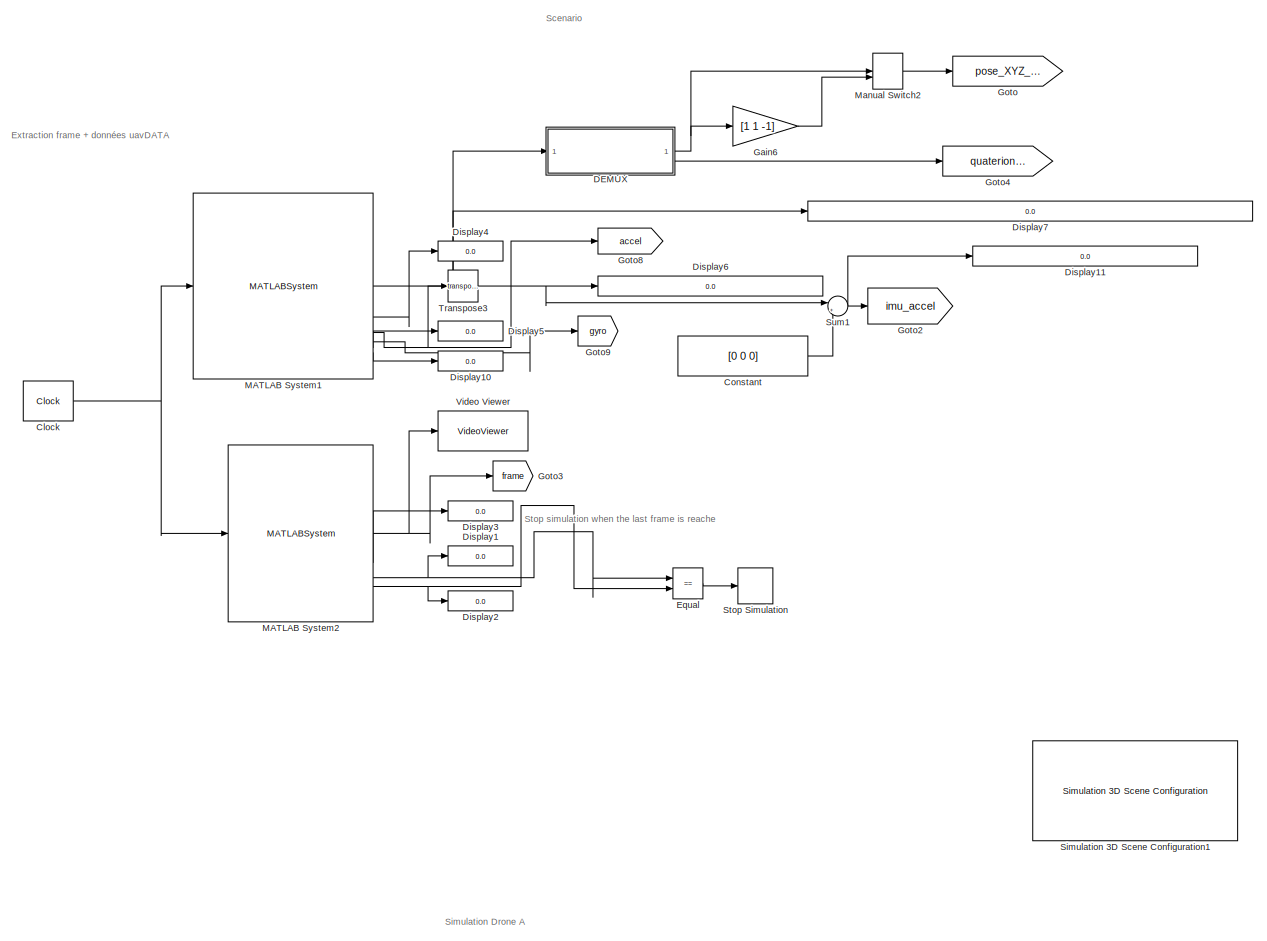
[diagram: root canvas - part 1/8, top center region]
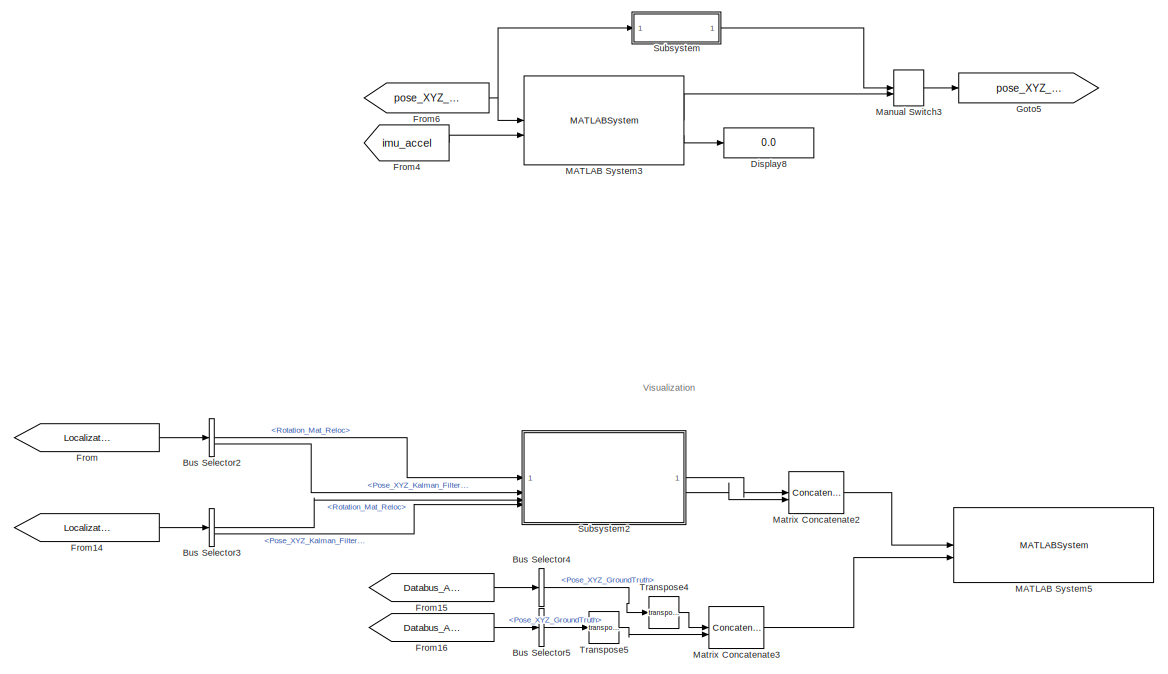
[diagram: root canvas - part 2/8, top right region]
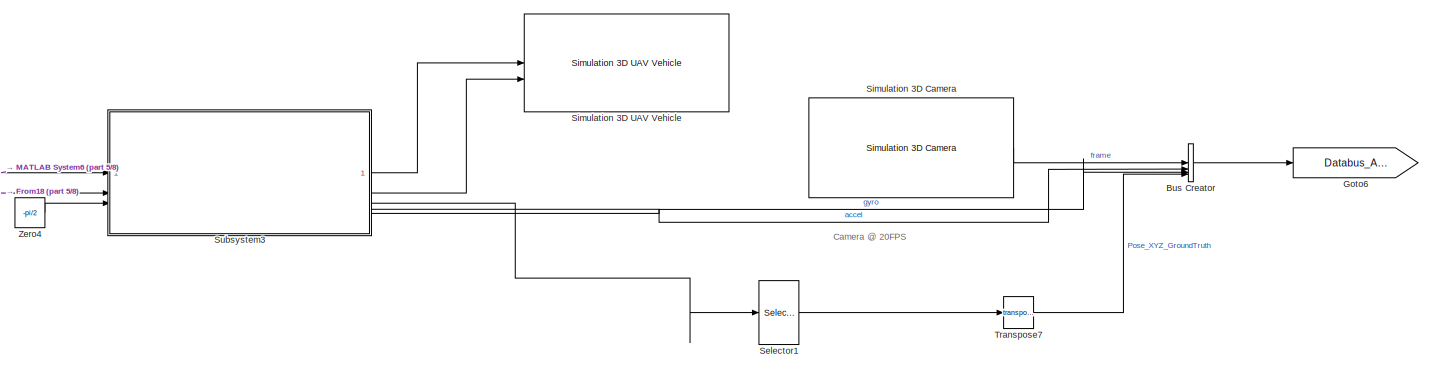
[diagram: root canvas - part 3/8, central region]
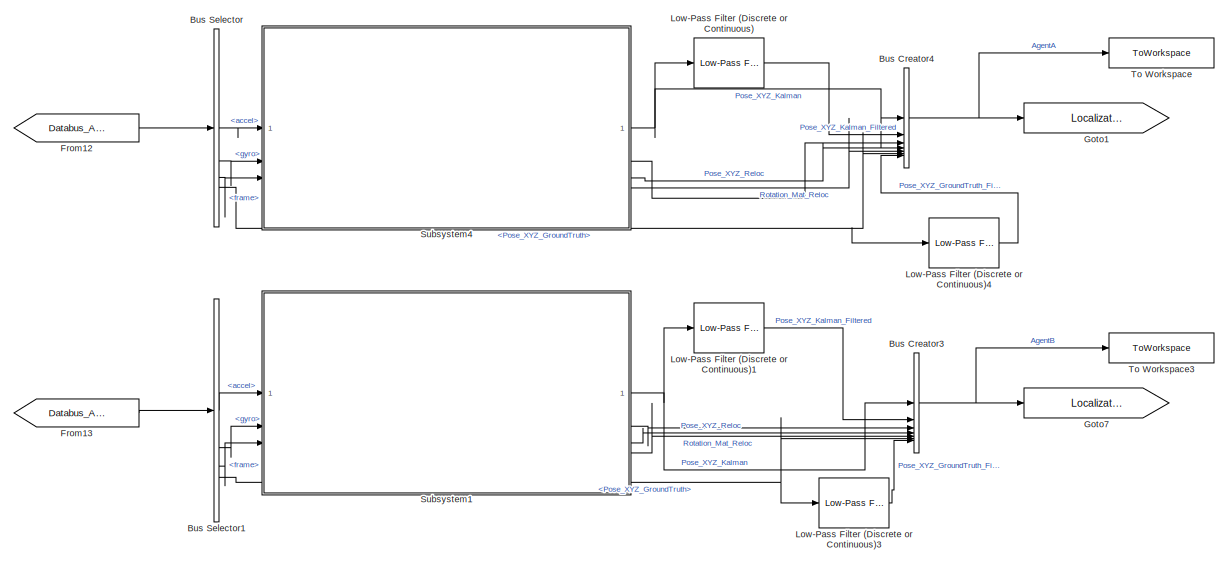
[diagram: root canvas - part 4/8, middle right region]
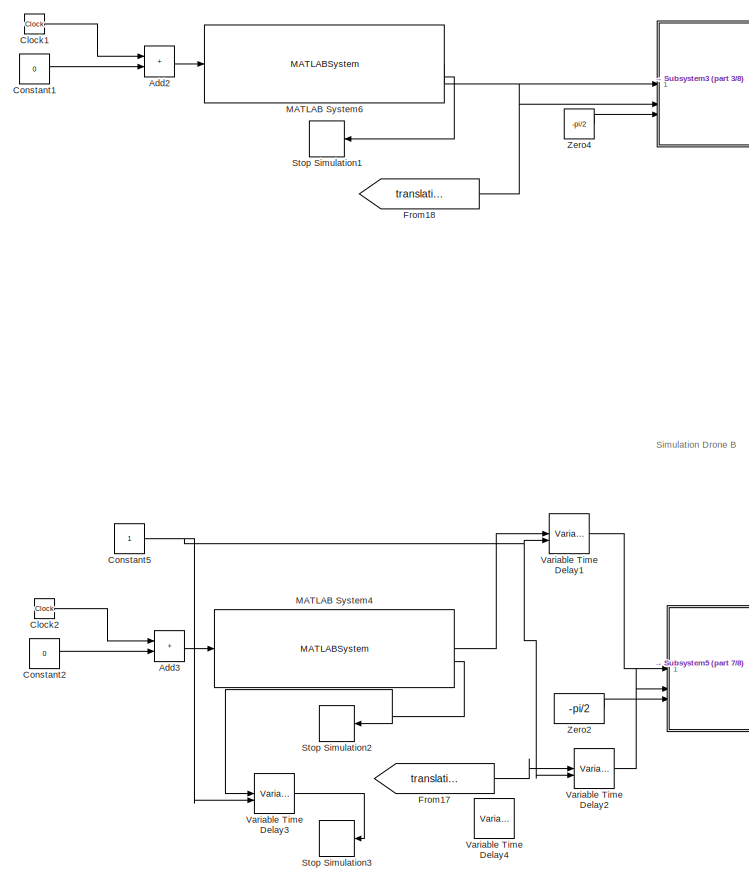
[diagram: root canvas - part 5/8, central region]
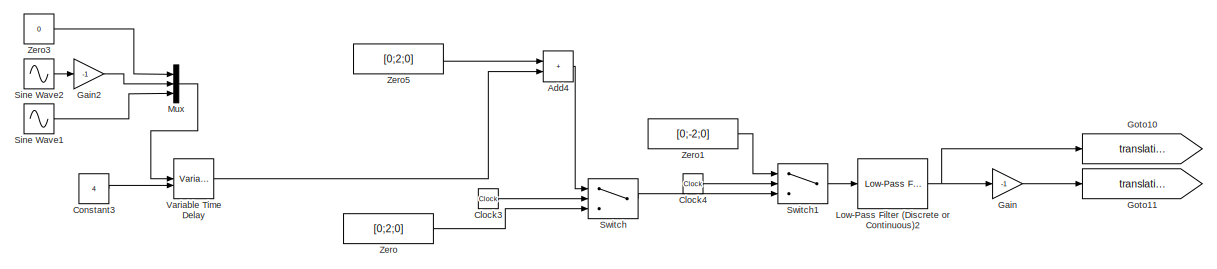
[diagram: root canvas - part 6/8, middle left region]
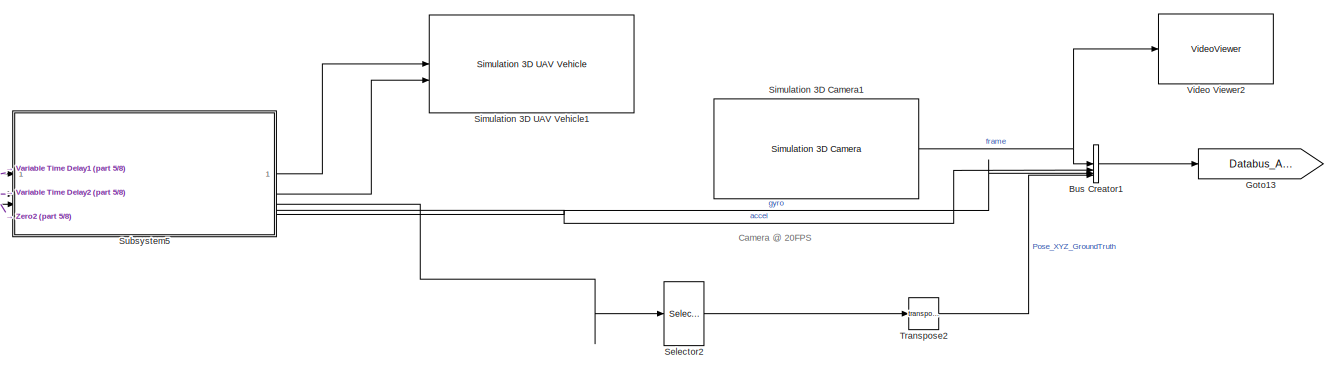
[diagram: root canvas - part 7/8, bottom center region]
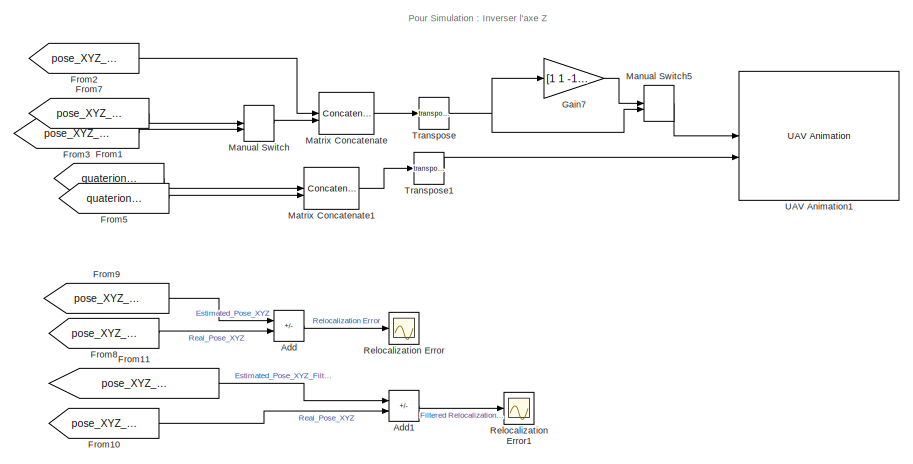
[diagram: root canvas - part 8/8, bottom right region]
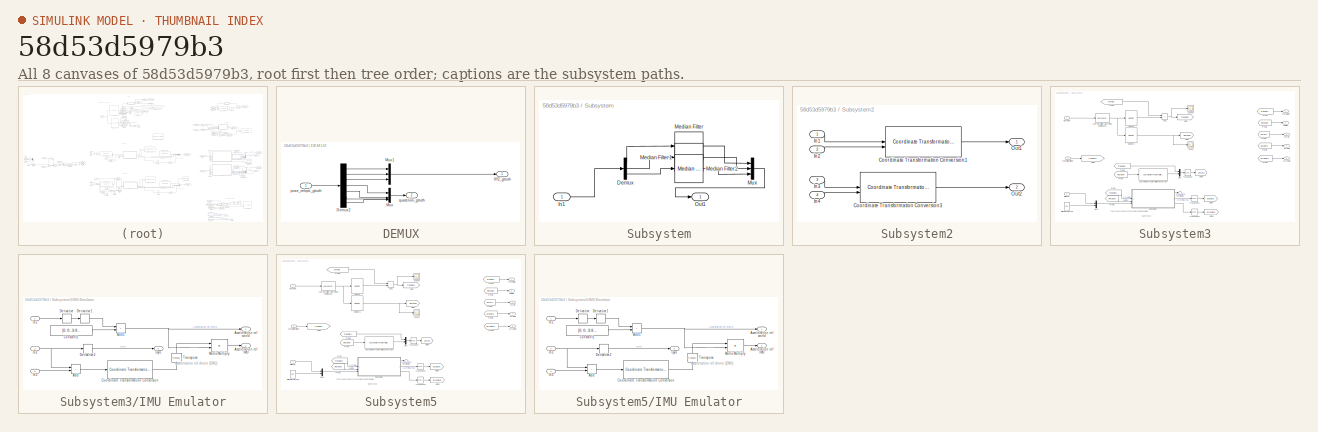
[diagram: thumbnail index - all 8 canvases of the model, root first then tree order]
MODEL slx_58d53d5979b3
KIND model
CONFIG AbsTol = auto
CONFIG EnableMultiTasking = on
CONFIG FixedStep = 0.005
CONFIG MaxStep = auto
CONFIG MinStep = auto
CONFIG RelTol = 1e-3
CONFIG SampleTimeConstraint = Unconstrained
CONFIG SolverName = FixedStepAuto
CONFIG StartTime = 0.0
CONFIG StopTime = inf
BLOCK [Sum] Add
  Commented = on
  IconShape = rectangular
  Inputs = +-
BLOCK [Sum] Add1
  Commented = on
  IconShape = rectangular
  Inputs = +-
BLOCK [Sum] Add2
  IconShape = rectangular
BLOCK [Sum] Add3
  IconShape = rectangular
BLOCK [Sum] Add4
  IconShape = rectangular
BLOCK [BusCreator] Bus Creator
  DisplayOption = bar
  InheritFromInputs = on
  Inputs = 4
BLOCK [BusCreator] Bus Creator1
  DisplayOption = bar
  InheritFromInputs = on
  Inputs = 4
BLOCK [BusCreator] Bus Creator3
  DisplayOption = bar
  InheritFromInputs = on
  Inputs = 7
BLOCK [BusCreator] Bus Creator4
  DisplayOption = bar
  InheritFromInputs = on
  Inputs = 7
BLOCK [BusSelector] Bus Selector
  OutputSignals = accel,gyro,frame,Pose_XYZ_GroundTruth
BLOCK [BusSelector] Bus Selector1
  OutputSignals = accel,gyro,frame,Pose_XYZ_GroundTruth
BLOCK [BusSelector] Bus Selector2
  OutputSignals = Rotation_Mat_Reloc,Pose_XYZ_Kalman_Filtered
BLOCK [BusSelector] Bus Selector3
  OutputSignals = Rotation_Mat_Reloc,Pose_XYZ_Kalman_Filtered
BLOCK [BusSelector] Bus Selector4
  OutputSignals = Pose_XYZ_GroundTruth
BLOCK [BusSelector] Bus Selector5
  OutputSignals = Pose_XYZ_GroundTruth
BLOCK [Clock] Clock
  Commented = on
  DisplayTime = on
BLOCK [Clock] Clock1
BLOCK [Clock] Clock2
BLOCK [Clock] Clock3
BLOCK [Clock] Clock4
BLOCK [Constant] Constant
  Commented = on
  Value = [0 0 0]
BLOCK [Constant] Constant1
  Value = 0
BLOCK [Constant] Constant2
  Value = 0
BLOCK [Constant] Constant3
  Value = 4
BLOCK [Constant] Constant5
BLOCK [SubSystem] DEMUX
  Commented = on
BLOCK [Demux] DEMUX/Demux2
  Outputs = 7
BLOCK [Mux] DEMUX/Mux
  DisplayOption = bar
BLOCK [Mux] DEMUX/Mux1
  DisplayOption = bar
  Inputs = 3
BLOCK [Outport] DEMUX/XYZ_gtruth
BLOCK [Inport] DEMUX/pose_refopti_gtruth
BLOCK [Outport] DEMUX/quaterion_gtruth
  Port = 2
BLOCK [Display] Display1
  Commented = on
  Decimation = 1
BLOCK [Display] Display10
  Commented = on
  Decimation = 1
BLOCK [Display] Display11
  Commented = on
  Decimation = 1
BLOCK [Display] Display2
  Commented = on
  Decimation = 1
BLOCK [Display] Display3
  Commented = on
  Decimation = 1
BLOCK [Display] Display4
  Commented = on
  Decimation = 1
BLOCK [Display] Display5
  Commented = on
  Decimation = 1
BLOCK [Display] Display6
  Commented = on
  Decimation = 1
BLOCK [Display] Display7
  Commented = on
  Decimation = 1
BLOCK [Display] Display8
  Commented = on
  Decimation = 1
BLOCK [RelationalOperator] Equal
  Commented = on
  InputSameDT = off
  Operator = ==
  OutDataTypeStr = boolean
  RndMeth = Simplest
BLOCK [From] From
  GotoTag = Localization_AgentA
BLOCK [From] From1
  Commented = on
  GotoTag = quaterion_opti
BLOCK [From] From10
  Commented = on
  GotoTag = pose_XYZ_opti
BLOCK [From] From11
  Commented = on
  GotoTag = pose_XYZ_reloc_filtered
BLOCK [From] From12
  GotoTag = Databus_AgentA
BLOCK [From] From13
  GotoTag = Databus_AgentB
BLOCK [From] From14
  GotoTag = Localization_AgentB
BLOCK [From] From15
  GotoTag = Databus_AgentA
BLOCK [From] From16
  GotoTag = Databus_AgentB
BLOCK [From] From17
  GotoTag = translationOffsetB
BLOCK [From] From18
  GotoTag = translationOffsetA
BLOCK [From] From2
  Commented = on
  GotoTag = pose_XYZ_opti
BLOCK [From] From3
  Commented = on
  GotoTag = pose_XYZ_reloc_agent1
BLOCK [From] From4
  Commented = on
  GotoTag = imu_accel
BLOCK [From] From5
  Commented = on
  GotoTag = quaterion_opti
BLOCK [From] From6
  Commented = on
  GotoTag = pose_XYZ_reloc_agent1
BLOCK [From] From7
  Commented = on
  GotoTag = pose_XYZ_reloc_filtered
BLOCK [From] From8
  Commented = on
  GotoTag = pose_XYZ_opti
BLOCK [From] From9
  Commented = on
  GotoTag = pose_XYZ_reloc_agent1
BLOCK [Gain] Gain
  Gain = -1
BLOCK [Gain] Gain2
  Gain = -1
BLOCK [Gain] Gain6
  Commented = on
  Gain = [1 1 -1]
BLOCK [Gain] Gain7
  Commented = on
  Gain = [1 1 -1; 1 1 -1]
BLOCK [Goto] Goto
  Commented = on
  GotoTag = pose_XYZ_opti
BLOCK [Goto] Goto1
  GotoTag = Localization_AgentA
BLOCK [Goto] Goto10
  GotoTag = translationOffsetA
BLOCK [Goto] Goto11
  GotoTag = translationOffsetB
BLOCK [Goto] Goto13
  GotoTag = Databus_AgentB
BLOCK [Goto] Goto2
  Commented = on
  GotoTag = imu_accel
BLOCK [Goto] Goto3
  Commented = on
  GotoTag = frame
BLOCK [Goto] Goto4
  Commented = on
  GotoTag = quaterion_opti
BLOCK [Goto] Goto5
  Commented = on
  GotoTag = pose_XYZ_reloc_filtered
BLOCK [Goto] Goto6
  GotoTag = Databus_AgentA
BLOCK [Goto] Goto7
  GotoTag = Localization_AgentB
BLOCK [Goto] Goto8
  Commented = on
  GotoTag = accel
BLOCK [Goto] Goto9
  Commented = on
  GotoTag = gyro
BLOCK [Reference] Low-Pass Filter (Discrete or Continuous)  REF=eeGeneralControl/Low-Pass Filter
(Discrete or Continuous)
  LibrarySourceBlock = ee_sl_lib/General Control/Low-Pass Filter\n(Discrete or Continuous)
  SourceBlock = eeGeneralControl/Low-Pass Filter\n(Discrete or Continuous)
  SourceType = Low-Pass Filter (Discrete or Continuous)
BLOCK [Reference] Low-Pass Filter (Discrete or Continuous)1  REF=eeGeneralControl/Low-Pass Filter
(Discrete or Continuous)
  LibrarySourceBlock = ee_sl_lib/General Control/Low-Pass Filter\n(Discrete or Continuous)
  SourceBlock = eeGeneralControl/Low-Pass Filter\n(Discrete or Continuous)
  SourceType = Low-Pass Filter (Discrete or Continuous)
BLOCK [Reference] Low-Pass Filter (Discrete or Continuous)2  REF=eeGeneralControl/Low-Pass Filter
(Discrete or Continuous)
  LibrarySourceBlock = ee_sl_lib/General Control/Low-Pass Filter\n(Discrete or Continuous)
  SourceBlock = eeGeneralControl/Low-Pass Filter\n(Discrete or Continuous)
  SourceType = Low-Pass Filter (Discrete or Continuous)
BLOCK [Reference] Low-Pass Filter (Discrete or Continuous)3  REF=eeGeneralControl/Low-Pass Filter
(Discrete or Continuous)
  LibrarySourceBlock = ee_sl_lib/General Control/Low-Pass Filter\n(Discrete or Continuous)
  SourceBlock = eeGeneralControl/Low-Pass Filter\n(Discrete or Continuous)
  SourceType = Low-Pass Filter (Discrete or Continuous)
BLOCK [Reference] Low-Pass Filter (Discrete or Continuous)4  REF=eeGeneralControl/Low-Pass Filter
(Discrete or Continuous)
  LibrarySourceBlock = ee_sl_lib/General Control/Low-Pass Filter\n(Discrete or Continuous)
  SourceBlock = eeGeneralControl/Low-Pass Filter\n(Discrete or Continuous)
  SourceType = Low-Pass Filter (Discrete or Continuous)
BLOCK [MATLABSystem] MATLAB System1
  Commented = on
  MaskDisplay = disp('GTruthPlayerSystem');
  MaskType = GTruthPlayerSystem
  SimulateUsing = Interpreted execution
  System = GTruthPlayerSystem
  groundTruthFile = <userpath>\Documents\SEN5\CollaborativeSLAM\Scenarios\7\uavData.mat
BLOCK [MATLABSystem] MATLAB System2
  Commented = on
  MaskDisplay = disp('ImagePlayerSystem');
  MaskType = ImagePlayerSystem
  SimulateUsing = Interpreted execution
  System = ImagePlayerSystem
  cameraSize = [720,1280, 1]
  groundTruthFile = <userpath>\Documents\SEN5\CollaborativeSLAM\Scenarios\7\uavData.mat
  imageFolder = <userpath>\Documents\SEN5\CollaborativeSLAM\Scenarios\7\images
BLOCK [MATLABSystem] MATLAB System3
  Commented = on
  MaskDisplay = disp('PositionAccelFilter');\nport_label('input',1,'position');\nport_label('input',2,'acceleration');\nport_label('output',1,'filteredPosition');\nport_label('output',2,'isJump');
  MaskType = PositionAccelFilter
  SimulateUsing = Code generation
  System = PositionAccelFilter
  alpha = 0.1
  maxAcceleration = 10.0
  maxPositionJump = 0.2
  windowSize = 5
BLOCK [MATLABSystem] MATLAB System4
  MaskDisplay = disp('SmoothBasicWaypointManager');\nport_label('input',1,'time');\nport_label('output',1,'waypoint');\nport_label('output',2,'finished');
  MaskType = SmoothBasicWaypointManager
  ScenarioName = 6
  ScenariosDirectory = <userpath>\Documents\SEN5\CollaborativeSLAM\Scenarios
  SimulateUsing = Interpreted execution
  StepTime = 0.01
  System = SmoothBasicWaypointManager
BLOCK [MATLABSystem] MATLAB System5
  MaskDisplay = disp('HelperVisualizationSystem');\nport_label('input',1,'TformID');\nport_label('input',2,'Gtruth');
  MaskType = HelperVisualizationSystem
  NumberOfPoses = 2
  SampleTime = -1
  ScenarioName = 8
  ScenariosDirectory = <userpath>\Documents\SEN5\CollaborativeSLAM\Scenarios
  SimulateUsing = Interpreted execution
  System = HelperVisualizationSystem
  XLim = [-10 60]
  YLim = [-10 10]
  ZLim = [-10 10]
BLOCK [MATLABSystem] MATLAB System6
  MaskDisplay = disp('SmoothBasicWaypointManager');\nport_label('input',1,'time');\nport_label('output',1,'waypoint');\nport_label('output',2,'finished');
  MaskType = SmoothBasicWaypointManager
  ScenarioName = 6
  ScenariosDirectory = <userpath>\Documents\SEN5\CollaborativeSLAM\Scenarios
  SimulateUsing = Interpreted execution
  StepTime = 0.01
  System = SmoothBasicWaypointManager
BLOCK [ManualSwitch] Manual Switch
  Commented = on
  CurrentSetting = 0
BLOCK [ManualSwitch] Manual Switch2
  Commented = on
BLOCK [ManualSwitch] Manual Switch3
  Commented = on
  CurrentSetting = 0
BLOCK [ManualSwitch] Manual Switch5
  Commented = on
BLOCK [Concatenate] Matrix Concatenate
  Commented = on
  ConcatenateDimension = 2
  Mode = Multidimensional array
BLOCK [Concatenate] Matrix Concatenate1
  Commented = on
  ConcatenateDimension = 2
  Mode = Multidimensional array
BLOCK [Concatenate] Matrix Concatenate2
  ConcatenateDimension = 2
  Mode = Multidimensional array
  NumInputs = 3
BLOCK [Concatenate] Matrix Concatenate3
  ConcatenateDimension = 2
  Mode = Multidimensional array
BLOCK [Mux] Mux
  DisplayOption = bar
  Inputs = 3
BLOCK [Scope] Relocalization Error
  Commented = on
  Floating = off
  NumInputPorts = 1
  ScopeSpecificationString = Simulink.scopes.TimeScopeBlockCfg('CurrentConfiguration', extmgr.ConfigurationSet(extmgr.Configuration('Core','General UI',true),extmgr.Configuration('Core','Source UI',true),extmgr.Configuration('Sources','WiredSimulink',true,'DataLoggingVariableName','ScopeData1'),extmgr.Configuration('Visuals','Time Domain',true),extmgr.Configuration('Tools','Plot Navigation',true),extmgr.Configuration('Tools',...<+40ch>
BLOCK [Scope] Relocalization Error1
  Commented = on
  Floating = off
  NumInputPorts = 1
  ScopeSpecificationString = Simulink.scopes.TimeScopeBlockCfg('CurrentConfiguration', extmgr.ConfigurationSet(extmgr.Configuration('Core','General UI',true),extmgr.Configuration('Core','Source UI',true),extmgr.Configuration('Sources','WiredSimulink',true,'DataLoggingVariableName','ScopeData2'),extmgr.Configuration('Visuals','Time Domain',true),extmgr.Configuration('Tools','Plot Navigation',true),extmgr.Configuration('Tools',...<+40ch>
BLOCK [Selector] Selector1
  IndexOptions = Index vector (dialog)
  Indices = [1 2 3]
  InputPortWidth = 7
  OutputSizes = 1
BLOCK [Selector] Selector2
  IndexOptions = Index vector (dialog)
  Indices = [1 2 3]
  InputPortWidth = 7
  OutputSizes = 1
BLOCK [Reference] Simulation 3D Camera  REF=sim3dcameralib/Simulation 3D Camera
  LibrarySourceBlock = drivingsim3d/Simulation 3D Camera
  Priority = 1
  SourceBlock = sim3dcameralib/Simulation 3D Camera
  SourceType = Simulation 3D Camera
BLOCK [Reference] Simulation 3D Camera1  REF=sim3dcameralib/Simulation 3D Camera
  LibrarySourceBlock = drivingsim3d/Simulation 3D Camera
  Priority = 1
  SourceBlock = sim3dcameralib/Simulation 3D Camera
  SourceType = Simulation 3D Camera
BLOCK [Reference] Simulation 3D Scene Configuration1  REF=sim3dlib/Simulation 3D Scene Configuration
  LibrarySourceBlock = uavsim3dlib/Simulation 3D Scene Configuration
  Priority = 0
  SourceBlock = sim3dlib/Simulation 3D Scene Configuration
  SourceType = Simulation 3D Scene Configuration
BLOCK [Reference] Simulation 3D UAV Vehicle  REF=uavsim3dlib/Simulation 3D UAV Vehicle
  Priority = -1
  SourceBlock = uavsim3dlib/Simulation 3D UAV Vehicle
  SourceType = Simulation 3D UAV Vehicle
BLOCK [Reference] Simulation 3D UAV Vehicle1  REF=uavsim3dlib/Simulation 3D UAV Vehicle
  Priority = -1
  SourceBlock = uavsim3dlib/Simulation 3D UAV Vehicle
  SourceType = Simulation 3D UAV Vehicle
BLOCK [Sin] Sine Wave1
  Frequency = 2*pi/20
  SampleTime = 0
BLOCK [Sin] Sine Wave2
  Amplitude = 4
  Frequency = 2*pi/40
  SampleTime = 0
BLOCK [Stop] Stop Simulation
  Commented = on
BLOCK [Stop] Stop Simulation1
  Commented = on
  NameLocation = top
BLOCK [Stop] Stop Simulation2
  Commented = on
  NameLocation = top
BLOCK [Stop] Stop Simulation3
  NameLocation = top
BLOCK [SubSystem] Subsystem
  Commented = on
BLOCK [Demux] Subsystem/Demux
  Outputs = 3
BLOCK [Inport] Subsystem/In1
BLOCK [Reference] Subsystem/Median Filter  REF=dspstat3/Median
Filter
  SourceBlock = dspstat3/Median\nFilter
  SourceType = dsp.simulink.MedianFilter
BLOCK [Reference] Subsystem/Median Filter1  REF=dspstat3/Median
Filter
  SourceBlock = dspstat3/Median\nFilter
  SourceType = dsp.simulink.MedianFilter
BLOCK [Reference] Subsystem/Median Filter2  REF=dspstat3/Median
Filter
  SourceBlock = dspstat3/Median\nFilter
  SourceType = dsp.simulink.MedianFilter
BLOCK [Mux] Subsystem/Mux
  DisplayOption = bar
  Inputs = 3
BLOCK [Outport] Subsystem/Out1
  PortDimensions = [3 1]
BLOCK [SubSystem] Subsystem1
  ReferencedSubsystem = LocalizationSystem
BLOCK [SubSystem] Subsystem2
BLOCK [Reference] Subsystem2/Coordinate Transformation Conversion1  REF=robotcorelib/Coordinate Transformation Conversion
  LibrarySourceBlock = navlib/Utilities/Coordinate Transformation Conversion
  SourceBlock = robotcorelib/Coordinate Transformation Conversion
  SourceType = robotics.slcore.internal.block.CoordinateTransformationConversion
BLOCK [Reference] Subsystem2/Coordinate Transformation Conversion3  REF=robotcorelib/Coordinate Transformation Conversion
  LibrarySourceBlock = navlib/Utilities/Coordinate Transformation Conversion
  SourceBlock = robotcorelib/Coordinate Transformation Conversion
  SourceType = robotics.slcore.internal.block.CoordinateTransformationConversion
BLOCK [Inport] Subsystem2/In1
BLOCK [Inport] Subsystem2/In2
  Port = 2
BLOCK [Inport] Subsystem2/In3
  Port = 3
BLOCK [Inport] Subsystem2/In4
  Port = 4
BLOCK [Outport] Subsystem2/Out1
BLOCK [Outport] Subsystem2/Out2
  Port = 2
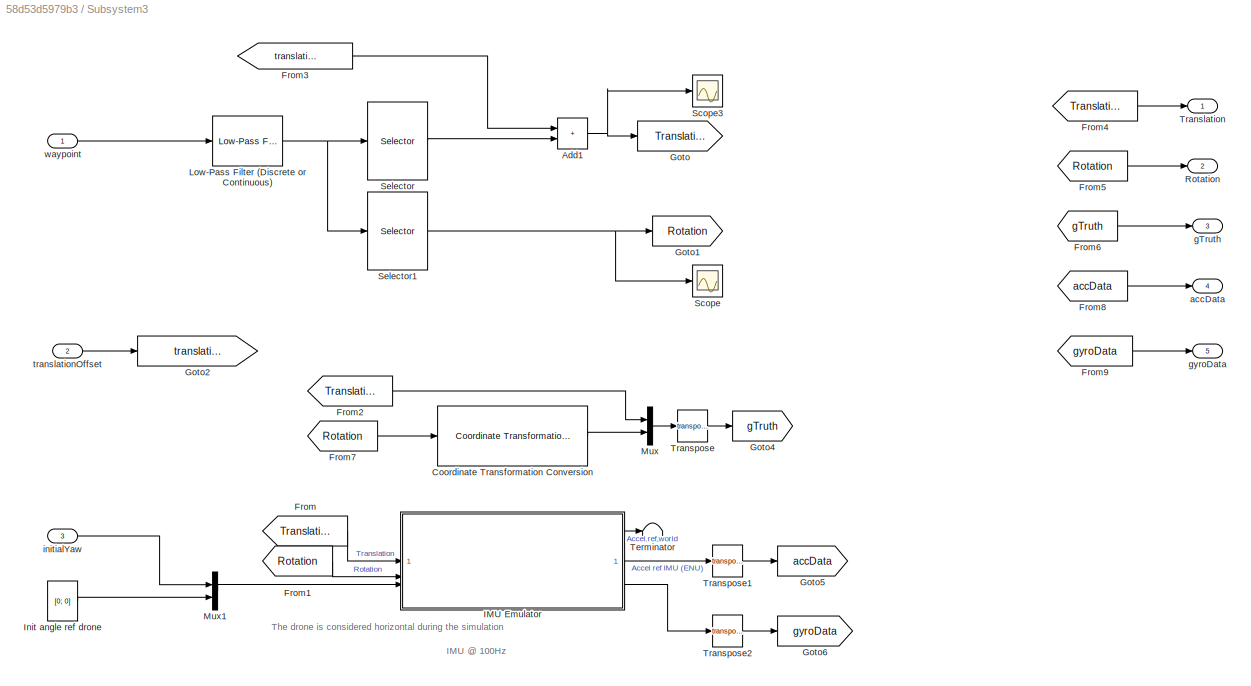
BLOCK [SubSystem] Subsystem3
BLOCK [Sum] Subsystem3/Add1
  IconShape = rectangular
BLOCK [Reference] Subsystem3/Coordinate Transformation Conversion  REF=robotcorelib/Coordinate Transformation Conversion
  SourceBlock = robotcorelib/Coordinate Transformation Conversion
  SourceType = robotics.slcore.internal.block.CoordinateTransformationConversion
BLOCK [From] Subsystem3/From
  GotoTag = Translation
BLOCK [From] Subsystem3/From1
  GotoTag = Rotation
BLOCK [From] Subsystem3/From2
  GotoTag = Translation
BLOCK [From] Subsystem3/From3
  GotoTag = translationOffset
BLOCK [From] Subsystem3/From4
  GotoTag = Translation
BLOCK [From] Subsystem3/From5
  GotoTag = Rotation
BLOCK [From] Subsystem3/From6
  GotoTag = gTruth
BLOCK [From] Subsystem3/From7
  GotoTag = Rotation
BLOCK [From] Subsystem3/From8
  GotoTag = accData
BLOCK [From] Subsystem3/From9
  GotoTag = gyroData
BLOCK [Goto] Subsystem3/Goto
  GotoTag = Translation
BLOCK [Goto] Subsystem3/Goto1
  GotoTag = Rotation
BLOCK [Goto] Subsystem3/Goto2
  GotoTag = translationOffset
BLOCK [Goto] Subsystem3/Goto4
  GotoTag = gTruth
BLOCK [Goto] Subsystem3/Goto5
  GotoTag = accData
BLOCK [Goto] Subsystem3/Goto6
  GotoTag = gyroData
BLOCK [SubSystem] Subsystem3/IMU Emulator
BLOCK [Outport] Subsystem3/IMU Emulator/Acceleration ref IMU
  Port = 2
BLOCK [Outport] Subsystem3/IMU Emulator/Acceleration ref world
BLOCK [Sum] Subsystem3/IMU Emulator/Add
  IconShape = rectangular
BLOCK [Sum] Subsystem3/IMU Emulator/Add1
  IconShape = rectangular
BLOCK [Constant] Subsystem3/IMU Emulator/Constant1
  Value = [0; 0; -9.81]
BLOCK [Reference] Subsystem3/IMU Emulator/Coordinate Transformation Conversion  REF=robotcorelib/Coordinate Transformation Conversion
  SourceBlock = robotcorelib/Coordinate Transformation Conversion
  SourceType = robotics.slcore.internal.block.CoordinateTransformationConversion
BLOCK [Derivative] Subsystem3/IMU Emulator/Derivative
BLOCK [Derivative] Subsystem3/IMU Emulator/Derivative1
BLOCK [Derivative] Subsystem3/IMU Emulator/Derivative2
BLOCK [Outport] Subsystem3/IMU Emulator/Gyro
  Port = 3
BLOCK [Inport] Subsystem3/IMU Emulator/In1
BLOCK [Inport] Subsystem3/IMU Emulator/In2
  Port = 2
BLOCK [Inport] Subsystem3/IMU Emulator/In3
  Port = 3
BLOCK [Product] Subsystem3/IMU Emulator/Matrix Multiply
  Multiplication = Matrix(*)
BLOCK [Math] Subsystem3/IMU Emulator/Transpose
  NameLocation = right
  Operator = transpose
BLOCK [Constant] Subsystem3/Init angle ref drone
  Value = [0; 0]
  VectorParams1D = off
BLOCK [Reference] Subsystem3/Low-Pass Filter (Discrete or Continuous)  REF=eeGeneralControl/Low-Pass Filter
(Discrete or Continuous)
  SourceBlock = eeGeneralControl/Low-Pass Filter\n(Discrete or Continuous)
  SourceType = Low-Pass Filter (Discrete or Continuous)
BLOCK [Mux] Subsystem3/Mux
  DisplayOption = bar
  Inputs = 2
BLOCK [Mux] Subsystem3/Mux1
  DisplayOption = bar
  Inputs = 2
BLOCK [Outport] Subsystem3/Rotation
  Port = 2
BLOCK [Scope] Subsystem3/Scope
  Floating = off
  NumInputPorts = 1
  ScopeSpecificationString = Simulink.scopes.TimeScopeBlockCfg('CurrentConfiguration', extmgr.ConfigurationSet(extmgr.Configuration('Core','General UI',true),extmgr.Configuration('Core','Source UI',true),extmgr.Configuration('Sources','WiredSimulink',true),extmgr.Configuration('Visuals','Time Domain',true,'SerializedDisplays',{struct('MinYLimReal','-22.97466','MaxYLimReal','26.11469','YLabelReal','','MinYLimMag','0.00000','Ma...<+1483ch>
BLOCK [Scope] Subsystem3/Scope3
  Floating = off
  NumInputPorts = 1
  ScopeSpecificationString = Simulink.scopes.TimeScopeBlockCfg('CurrentConfiguration', extmgr.ConfigurationSet(extmgr.Configuration('Core','General UI',true),extmgr.Configuration('Core','Source UI',true),extmgr.Configuration('Sources','WiredSimulink',true,'DataLoggingVariableName','ScopeData1'),extmgr.Configuration('Visuals','Time Domain',true,'SerializedDisplays',{struct('MinYLimReal','-2.95','MaxYLimReal','6.55','YLabelReal...<+1782ch>
BLOCK [Selector] Subsystem3/Selector
  IndexOptions = Index vector (dialog)
  Indices = [1 2 3]
  InputPortWidth = 6
  OutputSizes = 1
BLOCK [Selector] Subsystem3/Selector1
  IndexOptions = Index vector (dialog)
  Indices = [4 5 6]
  InputPortWidth = 6
  OutputSizes = 1
BLOCK [Terminator] Subsystem3/Terminator
BLOCK [Outport] Subsystem3/Translation
BLOCK [Math] Subsystem3/Transpose
  Operator = transpose
BLOCK [Math] Subsystem3/Transpose1
  Operator = transpose
BLOCK [Math] Subsystem3/Transpose2
  Operator = transpose
BLOCK [Outport] Subsystem3/accData
  Port = 4
BLOCK [Outport] Subsystem3/gTruth
  Port = 3
BLOCK [Outport] Subsystem3/gyroData
  Port = 5
BLOCK [Inport] Subsystem3/initialYaw
  Port = 3
BLOCK [Inport] Subsystem3/translationOffset
  Port = 2
BLOCK [Inport] Subsystem3/waypoint
BLOCK [SubSystem] Subsystem4
  ReferencedSubsystem = LocalizationSystem
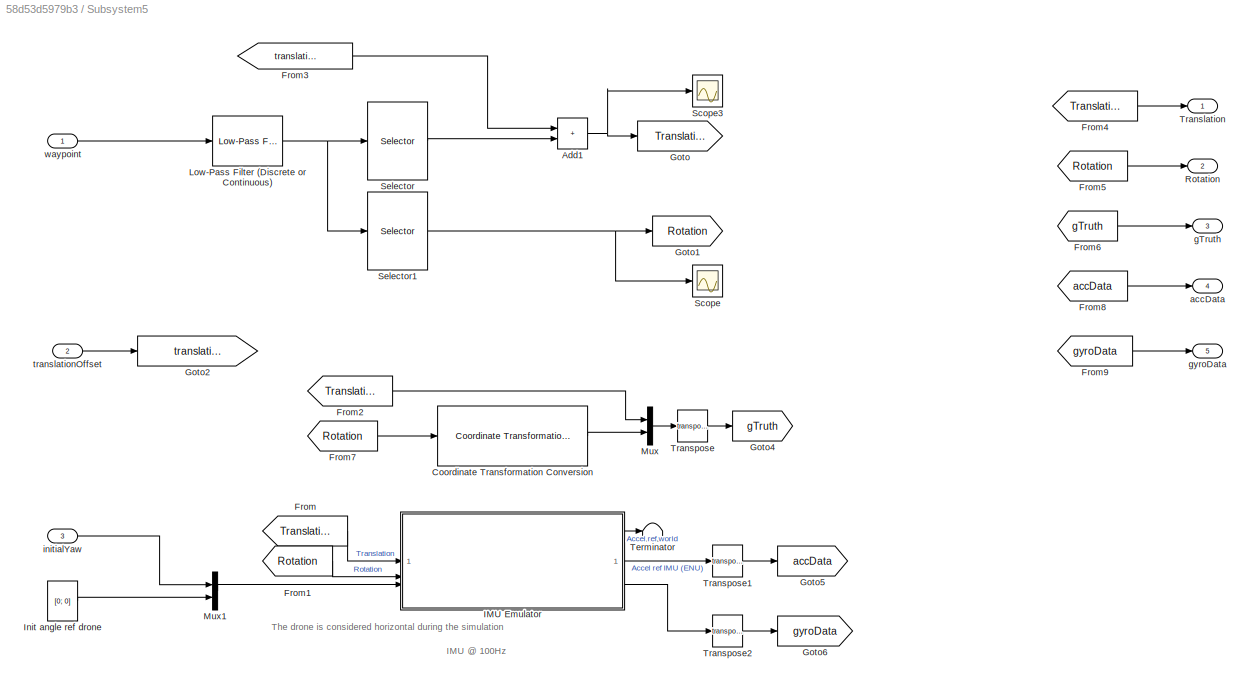
BLOCK [SubSystem] Subsystem5
BLOCK [Sum] Subsystem5/Add1
  IconShape = rectangular
BLOCK [Reference] Subsystem5/Coordinate Transformation Conversion  REF=robotcorelib/Coordinate Transformation Conversion
  SourceBlock = robotcorelib/Coordinate Transformation Conversion
  SourceType = robotics.slcore.internal.block.CoordinateTransformationConversion
BLOCK [From] Subsystem5/From
  GotoTag = Translation
BLOCK [From] Subsystem5/From1
  GotoTag = Rotation
BLOCK [From] Subsystem5/From2
  GotoTag = Translation
BLOCK [From] Subsystem5/From3
  GotoTag = translationOffset
BLOCK [From] Subsystem5/From4
  GotoTag = Translation
BLOCK [From] Subsystem5/From5
  GotoTag = Rotation
BLOCK [From] Subsystem5/From6
  GotoTag = gTruth
BLOCK [From] Subsystem5/From7
  GotoTag = Rotation
BLOCK [From] Subsystem5/From8
  GotoTag = accData
BLOCK [From] Subsystem5/From9
  GotoTag = gyroData
BLOCK [Goto] Subsystem5/Goto
  GotoTag = Translation
BLOCK [Goto] Subsystem5/Goto1
  GotoTag = Rotation
BLOCK [Goto] Subsystem5/Goto2
  GotoTag = translationOffset
BLOCK [Goto] Subsystem5/Goto4
  GotoTag = gTruth
BLOCK [Goto] Subsystem5/Goto5
  GotoTag = accData
BLOCK [Goto] Subsystem5/Goto6
  GotoTag = gyroData
BLOCK [SubSystem] Subsystem5/IMU Emulator
BLOCK [Outport] Subsystem5/IMU Emulator/Acceleration ref IMU
  Port = 2
BLOCK [Outport] Subsystem5/IMU Emulator/Acceleration ref world
BLOCK [Sum] Subsystem5/IMU Emulator/Add
  IconShape = rectangular
BLOCK [Sum] Subsystem5/IMU Emulator/Add1
  IconShape = rectangular
BLOCK [Constant] Subsystem5/IMU Emulator/Constant1
  Value = [0; 0; -9.81]
BLOCK [Reference] Subsystem5/IMU Emulator/Coordinate Transformation Conversion  REF=robotcorelib/Coordinate Transformation Conversion
  SourceBlock = robotcorelib/Coordinate Transformation Conversion
  SourceType = robotics.slcore.internal.block.CoordinateTransformationConversion
BLOCK [Derivative] Subsystem5/IMU Emulator/Derivative
BLOCK [Derivative] Subsystem5/IMU Emulator/Derivative1
BLOCK [Derivative] Subsystem5/IMU Emulator/Derivative2
BLOCK [Outport] Subsystem5/IMU Emulator/Gyro
  Port = 3
BLOCK [Inport] Subsystem5/IMU Emulator/In1
BLOCK [Inport] Subsystem5/IMU Emulator/In2
  Port = 2
BLOCK [Inport] Subsystem5/IMU Emulator/In3
  Port = 3
BLOCK [Product] Subsystem5/IMU Emulator/Matrix Multiply
  Multiplication = Matrix(*)
BLOCK [Math] Subsystem5/IMU Emulator/Transpose
  NameLocation = right
  Operator = transpose
BLOCK [Constant] Subsystem5/Init angle ref drone
  Value = [0; 0]
  VectorParams1D = off
BLOCK [Reference] Subsystem5/Low-Pass Filter (Discrete or Continuous)  REF=eeGeneralControl/Low-Pass Filter
(Discrete or Continuous)
  SourceBlock = eeGeneralControl/Low-Pass Filter\n(Discrete or Continuous)
  SourceType = Low-Pass Filter (Discrete or Continuous)
BLOCK [Mux] Subsystem5/Mux
  DisplayOption = bar
  Inputs = 2
BLOCK [Mux] Subsystem5/Mux1
  DisplayOption = bar
  Inputs = 2
BLOCK [Outport] Subsystem5/Rotation
  Port = 2
BLOCK [Scope] Subsystem5/Scope
  Floating = off
  NumInputPorts = 1
  ScopeSpecificationString = Simulink.scopes.TimeScopeBlockCfg('CurrentConfiguration', extmgr.ConfigurationSet(extmgr.Configuration('Core','General UI',true),extmgr.Configuration('Core','Source UI',true),extmgr.Configuration('Sources','WiredSimulink',true),extmgr.Configuration('Visuals','Time Domain',true,'SerializedDisplays',{struct('MinYLimReal','-22.97466','MaxYLimReal','26.11469','YLabelReal','','MinYLimMag','0.00000','Ma...<+1483ch>
BLOCK [Scope] Subsystem5/Scope3
  Floating = off
  NumInputPorts = 1
  ScopeSpecificationString = Simulink.scopes.TimeScopeBlockCfg('CurrentConfiguration', extmgr.ConfigurationSet(extmgr.Configuration('Core','General UI',true),extmgr.Configuration('Core','Source UI',true),extmgr.Configuration('Sources','WiredSimulink',true,'DataLoggingVariableName','ScopeData1'),extmgr.Configuration('Visuals','Time Domain',true,'SerializedDisplays',{struct('MinYLimReal','-2.95','MaxYLimReal','6.55','YLabelReal...<+1782ch>
BLOCK [Selector] Subsystem5/Selector
  IndexOptions = Index vector (dialog)
  Indices = [1 2 3]
  InputPortWidth = 6
  OutputSizes = 1
BLOCK [Selector] Subsystem5/Selector1
  IndexOptions = Index vector (dialog)
  Indices = [4 5 6]
  InputPortWidth = 6
  OutputSizes = 1
BLOCK [Terminator] Subsystem5/Terminator
BLOCK [Outport] Subsystem5/Translation
BLOCK [Math] Subsystem5/Transpose
  Operator = transpose
BLOCK [Math] Subsystem5/Transpose1
  Operator = transpose
BLOCK [Math] Subsystem5/Transpose2
  Operator = transpose
BLOCK [Outport] Subsystem5/accData
  Port = 4
BLOCK [Outport] Subsystem5/gTruth
  Port = 3
BLOCK [Outport] Subsystem5/gyroData
  Port = 5
BLOCK [Inport] Subsystem5/initialYaw
  Port = 3
BLOCK [Inport] Subsystem5/translationOffset
  Port = 2
BLOCK [Inport] Subsystem5/waypoint
BLOCK [Sum] Sum1
  Commented = on
  Inputs = |++
BLOCK [Switch] Switch
  InputSameDT = off
  SaturateOnIntegerOverflow = off
  Threshold = 4
BLOCK [Switch] Switch1
  InputSameDT = off
  SaturateOnIntegerOverflow = off
  Threshold = 14
BLOCK [ToWorkspace] To Workspace
  FixptAsFi = on
  MaxDataPoints = inf
  SampleTime = -1
  SaveFormat = Timeseries
  VariableName = Localization_AgentA
BLOCK [ToWorkspace] To Workspace3
  FixptAsFi = on
  MaxDataPoints = inf
  SampleTime = -1
  SaveFormat = Timeseries
  VariableName = Localization_AgentB
BLOCK [Math] Transpose
  Commented = on
  Operator = transpose
BLOCK [Math] Transpose1
  Commented = on
  Operator = transpose
BLOCK [Math] Transpose2
  Operator = transpose
BLOCK [Math] Transpose3
  Commented = on
  Operator = transpose
BLOCK [Math] Transpose4
  Operator = transpose
BLOCK [Math] Transpose5
  Operator = transpose
BLOCK [Math] Transpose7
  Operator = transpose
BLOCK [Reference] UAV Animation1  REF=uavutilslib/UAV Animation
  Commented = on
  SourceBlock = uavutilslib/UAV Animation
  SourceType = uav.sluav.internal.system.UAVAnimation
BLOCK [VariableTransportDelay] Variable Time Delay
  MaximumDelay = 10
BLOCK [VariableTransportDelay] Variable Time Delay1
  MaximumDelay = 10
BLOCK [VariableTransportDelay] Variable Time Delay2
  MaximumDelay = 10
BLOCK [VariableTransportDelay] Variable Time Delay3
  MaximumDelay = 10
BLOCK [VariableTransportDelay] Variable Time Delay4
  MaximumDelay = 10
BLOCK [VideoViewer] Video Viewer
  Commented = on
  FigPos = [184.333333333333 766.666666666667 706 510]
  ScopeSpecificationString = vipscopes.VideoViewerScopeCfg('CurrentConfiguration', extmgr.ConfigurationSet(extmgr.Configuration('Core','General UI',true),extmgr.Configuration('Core','Source UI',true),extmgr.Configuration('Sources','WiredSimulink',true),extmgr.Configuration('Visuals','Video',true),extmgr.Configuration('Tools','Image Navigation Tools',true,'Magnification',0.706692396555346),extmgr.Configuration('Tools','Image T...<+135ch>
  colormapValue = gray(256)
BLOCK [VideoViewer] Video Viewer2
  Commented = on
  FigPos = [1 1030 1920 930]
  ScopeSpecificationString = vipscopes.VideoViewerScopeCfg('CurrentConfiguration', extmgr.ConfigurationSet(extmgr.Configuration('Core','General UI',true),extmgr.Configuration('Core','Source UI',true),extmgr.Configuration('Sources','WiredSimulink',true),extmgr.Configuration('Visuals','Video',true),extmgr.Configuration('Tools','Image Navigation Tools',true),extmgr.Configuration('Tools','Image Tool',true),extmgr.Configuration('T...<+73ch>
BLOCK [Constant] Zero
  OutDataTypeStr = Inherit: Inherit via back propagation
  Value = [0;2;0]
BLOCK [Constant] Zero1
  OutDataTypeStr = Inherit: Inherit via back propagation
  Value = [0;-2;0]
BLOCK [Constant] Zero2
  OutDataTypeStr = Inherit: Inherit via back propagation
  Value = -pi/2
BLOCK [Constant] Zero3
  OutDataTypeStr = Inherit: Inherit via back propagation
  Value = 0
BLOCK [Constant] Zero4
  OutDataTypeStr = Inherit: Inherit via back propagation
  Value = -pi/2
BLOCK [Constant] Zero5
  OutDataTypeStr = Inherit: Inherit via back propagation
  Value = [0;2;0]
ANNOTATION (root): Extraction frame + données uavDATA
ANNOTATION (root): Simulation Drone A
ANNOTATION (root): Simulation Drone B
ANNOTATION (root): Scenario
ANNOTATION (root): Visualization
ANNOTATION (root): Camera @ 20FPS
ANNOTATION (root): Pour Simulation : Inverser l'axe Z
ANNOTATION (root): Stop simulation when the last frame is reache
ANNOTATION Subsystem3: The drone is considered horizontal during the simulation
ANNOTATION Subsystem3: IMU @ 100Hz
ANNOTATION Subsystem3/IMU Emulator: Acceleration ref drone (ENU)
ANNOTATION Subsystem5: The drone is considered horizontal during the simulation
ANNOTATION Subsystem5: IMU @ 100Hz
ANNOTATION Subsystem5/IMU Emulator: Acceleration ref drone (ENU)
LINE Add1:1 -> Relocalization Error1:1
LINE Add2:1 -> MATLAB System6:1
LINE Add3:1 -> MATLAB System4:1
LINE Add4:1 -> Switch:1
LINE Add:1 -> Relocalization Error:1
LINE Bus Creator1:1 -> Goto13:1
NET Bus Creator3:1 -> Goto7:1, To Workspace3:1
NET Bus Creator4:1 -> Goto1:1, To Workspace:1
LINE Bus Creator:1 -> Goto6:1
LINE Bus Selector1:1 -> Subsystem1:1
LINE Bus Selector1:2 -> Subsystem1:2
LINE Bus Selector1:3 -> Subsystem1:3
NET Bus Selector1:4 -> Bus Creator3:6, Low-Pass Filter (Discrete or Continuous)3:1
LINE Bus Selector2:1 -> Subsystem2:1
LINE Bus Selector2:2 -> Subsystem2:2
LINE Bus Selector3:1 -> Subsystem2:3
LINE Bus Selector3:2 -> Subsystem2:4
LINE Bus Selector4:1 -> Transpose4:1
LINE Bus Selector5:1 -> Transpose5:1
LINE Bus Selector:1 -> Subsystem4:1
LINE Bus Selector:2 -> Subsystem4:2
LINE Bus Selector:3 -> Subsystem4:3
NET Bus Selector:4 -> Bus Creator4:6, Low-Pass Filter (Discrete or Continuous)4:1
LINE Clock1:1 -> Add2:1
LINE Clock2:1 -> Add3:1
LINE Clock3:1 -> Switch:2
LINE Clock4:1 -> Switch1:2
NET Clock:1 -> MATLAB System1:1, MATLAB System2:1
LINE Constant1:1 -> Add2:2
LINE Constant2:1 -> Add3:2
LINE Constant3:1 -> Variable Time Delay:2
NET Constant5:1 -> Variable Time Delay1:2, Variable Time Delay2:2, Variable Time Delay3:2
LINE Constant:1 -> Sum1:2
LINE DEMUX/Demux2:1 -> DEMUX/Mux1:1
LINE DEMUX/Demux2:2 -> DEMUX/Mux1:2
LINE DEMUX/Demux2:3 -> DEMUX/Mux1:3
LINE DEMUX/Demux2:4 -> DEMUX/Mux:1
LINE DEMUX/Demux2:5 -> DEMUX/Mux:2
LINE DEMUX/Demux2:6 -> DEMUX/Mux:3
LINE DEMUX/Demux2:7 -> DEMUX/Mux:4
LINE DEMUX/Mux1:1 -> DEMUX/XYZ_gtruth:1
LINE DEMUX/Mux:1 -> DEMUX/quaterion_gtruth:1
LINE DEMUX/pose_refopti_gtruth:1 -> DEMUX/Demux2:1
NET DEMUX:1 -> Gain6:1, Manual Switch2:1
LINE DEMUX:2 -> Goto4:1
LINE Equal:1 -> Stop Simulation:1
LINE From10:1 -> Add1:2
LINE From11:1 -> Add1:1
LINE From12:1 -> Bus Selector:1
LINE From13:1 -> Bus Selector1:1
LINE From14:1 -> Bus Selector3:1
LINE From15:1 -> Bus Selector4:1
LINE From16:1 -> Bus Selector5:1
LINE From17:1 -> Variable Time Delay2:1
LINE From18:1 -> Subsystem3:2
LINE From1:1 -> Matrix Concatenate1:1
LINE From2:1 -> Matrix Concatenate:1
LINE From3:1 -> Manual Switch:2
LINE From4:1 -> MATLAB System3:2
LINE From5:1 -> Matrix Concatenate1:2
NET From6:1 -> MATLAB System3:1, Subsystem:1
LINE From7:1 -> Manual Switch:1
LINE From8:1 -> Add:2
LINE From9:1 -> Add:1
LINE From:1 -> Bus Selector2:1
LINE Gain2:1 -> Mux:2
LINE Gain6:1 -> Manual Switch2:2
LINE Gain7:1 -> Manual Switch5:1
LINE Gain:1 -> Goto11:1
LINE Low-Pass Filter (Discrete or Continuous)1:1 -> Bus Creator3:2
NET Low-Pass Filter (Discrete or Continuous)2:1 -> Gain:1, Goto10:1
LINE Low-Pass Filter (Discrete or Continuous)3:1 -> Bus Creator3:7
LINE Low-Pass Filter (Discrete or Continuous)4:1 -> Bus Creator4:7
LINE Low-Pass Filter (Discrete or Continuous):1 -> Bus Creator4:2
NET MATLAB System1:1 -> DEMUX:1, Display7:1
LINE MATLAB System1:2 -> Display4:1
NET MATLAB System1:3 -> Goto8:1, Transpose3:1
LINE MATLAB System1:4 -> Goto9:1
LINE MATLAB System1:5 -> Display5:1
LINE MATLAB System1:6 -> Display10:1
NET MATLAB System2:1 -> Goto3:1, Video Viewer:1
LINE MATLAB System2:2 -> Display3:1
NET MATLAB System2:3 -> Display1:1, Equal:1
NET MATLAB System2:4 -> Display2:1, Equal:2
LINE MATLAB System3:1 -> Manual Switch3:2
LINE MATLAB System3:2 -> Display8:1
LINE MATLAB System4:1 -> Variable Time Delay1:1
NET MATLAB System4:2 -> Stop Simulation2:1, Variable Time Delay3:1
LINE MATLAB System6:1 -> Subsystem3:1
LINE MATLAB System6:2 -> Stop Simulation1:1
LINE Manual Switch2:1 -> Goto:1
LINE Manual Switch3:1 -> Goto5:1
LINE Manual Switch5:1 -> UAV Animation1:1
LINE Manual Switch:1 -> Matrix Concatenate:2
LINE Matrix Concatenate1:1 -> Transpose1:1
LINE Matrix Concatenate2:1 -> MATLAB System5:1
LINE Matrix Concatenate3:1 -> MATLAB System5:2
LINE Matrix Concatenate:1 -> Transpose:1
LINE Mux:1 -> Variable Time Delay:1
LINE Selector1:1 -> Transpose7:1
LINE Selector2:1 -> Transpose2:1
NET Simulation 3D Camera1:1 -> Bus Creator1:1, Video Viewer2:1
LINE Simulation 3D Camera:1 -> Bus Creator:1
LINE Sine Wave1:1 -> Mux:3
LINE Sine Wave2:1 -> Gain2:1
LINE Subsystem/Demux:1 -> Subsystem/Median Filter:1
LINE Subsystem/Demux:2 -> Subsystem/Median Filter1:1
LINE Subsystem/Demux:3 -> Subsystem/Median Filter2:1
LINE Subsystem/In1:1 -> Subsystem/Demux:1
LINE Subsystem/Median Filter1:1 -> Subsystem/Mux:2
LINE Subsystem/Median Filter2:1 -> Subsystem/Mux:3
LINE Subsystem/Median Filter:1 -> Subsystem/Mux:1
LINE Subsystem/Mux:1 -> Subsystem/Out1:1
NET Subsystem1:1 -> Bus Creator3:1, Low-Pass Filter (Discrete or Continuous)1:1
LINE Subsystem1:2 -> Bus Creator3:3
LINE Subsystem1:3 -> Bus Creator3:4
LINE Subsystem1:4 -> Bus Creator3:5
LINE Subsystem2/Coordinate Transformation Conversion1:1 -> Subsystem2/Out1:1
LINE Subsystem2/Coordinate Transformation Conversion3:1 -> Subsystem2/Out2:1
LINE Subsystem2/In1:1 -> Subsystem2/Coordinate Transformation Conversion1:1
LINE Subsystem2/In2:1 -> Subsystem2/Coordinate Transformation Conversion1:2
LINE Subsystem2/In3:1 -> Subsystem2/Coordinate Transformation Conversion3:1
LINE Subsystem2/In4:1 -> Subsystem2/Coordinate Transformation Conversion3:2
LINE Subsystem2:1 -> Matrix Concatenate2:1
LINE Subsystem2:2 -> Matrix Concatenate2:2
NET Subsystem3/Add1:1 -> Subsystem3/Goto:1, Subsystem3/Scope3:1
LINE Subsystem3/Coordinate Transformation Conversion:1 -> Subsystem3/Mux:2
LINE Subsystem3/From1:1 -> Subsystem3/IMU Emulator:2
LINE Subsystem3/From2:1 -> Subsystem3/Mux:1
LINE Subsystem3/From3:1 -> Subsystem3/Add1:1
LINE Subsystem3/From4:1 -> Subsystem3/Translation:1
LINE Subsystem3/From5:1 -> Subsystem3/Rotation:1
LINE Subsystem3/From6:1 -> Subsystem3/gTruth:1
LINE Subsystem3/From7:1 -> Subsystem3/Coordinate Transformation Conversion:1
LINE Subsystem3/From8:1 -> Subsystem3/accData:1
LINE Subsystem3/From9:1 -> Subsystem3/gyroData:1
LINE Subsystem3/From:1 -> Subsystem3/IMU Emulator:1
NET Subsystem3/IMU Emulator/Add1:1 -> Subsystem3/IMU Emulator/Acceleration ref world:1, Subsystem3/IMU Emulator/Matrix Multiply:2
LINE Subsystem3/IMU Emulator/Add:1 -> Subsystem3/IMU Emulator/Coordinate Transformation Conversion:1
LINE Subsystem3/IMU Emulator/Constant1:1 -> Subsystem3/IMU Emulator/Add1:2
LINE Subsystem3/IMU Emulator/Coordinate Transformation Conversion:1 -> Subsystem3/IMU Emulator/Transpose:1
LINE Subsystem3/IMU Emulator/Derivative1:1 -> Subsystem3/IMU Emulator/Add1:1
LINE Subsystem3/IMU Emulator/Derivative2:1 -> Subsystem3/IMU Emulator/Gyro:1
LINE Subsystem3/IMU Emulator/Derivative:1 -> Subsystem3/IMU Emulator/Derivative1:1
LINE Subsystem3/IMU Emulator/In1:1 -> Subsystem3/IMU Emulator/Derivative:1
NET Subsystem3/IMU Emulator/In2:1 -> Subsystem3/IMU Emulator/Add:1, Subsystem3/IMU Emulator/Derivative2:1
LINE Subsystem3/IMU Emulator/In3:1 -> Subsystem3/IMU Emulator/Add:2
LINE Subsystem3/IMU Emulator/Matrix Multiply:1 -> Subsystem3/IMU Emulator/Acceleration ref IMU:1
LINE Subsystem3/IMU Emulator/Transpose:1 -> Subsystem3/IMU Emulator/Matrix Multiply:1
LINE Subsystem3/IMU Emulator:1 -> Subsystem3/Terminator:1
LINE Subsystem3/IMU Emulator:2 -> Subsystem3/Transpose1:1
LINE Subsystem3/IMU Emulator:3 -> Subsystem3/Transpose2:1
LINE Subsystem3/Init angle ref drone:1 -> Subsystem3/Mux1:2
NET Subsystem3/Low-Pass Filter (Discrete or Continuous):1 -> Subsystem3/Selector1:1, Subsystem3/Selector:1
LINE Subsystem3/Mux1:1 -> Subsystem3/IMU Emulator:3
LINE Subsystem3/Mux:1 -> Subsystem3/Transpose:1
NET Subsystem3/Selector1:1 -> Subsystem3/Goto1:1, Subsystem3/Scope:1
LINE Subsystem3/Selector:1 -> Subsystem3/Add1:2
LINE Subsystem3/Transpose1:1 -> Subsystem3/Goto5:1
LINE Subsystem3/Transpose2:1 -> Subsystem3/Goto6:1
LINE Subsystem3/Transpose:1 -> Subsystem3/Goto4:1
LINE Subsystem3/initialYaw:1 -> Subsystem3/Mux1:1
LINE Subsystem3/translationOffset:1 -> Subsystem3/Goto2:1
LINE Subsystem3/waypoint:1 -> Subsystem3/Low-Pass Filter (Discrete or Continuous):1
LINE Subsystem3:1 -> Simulation 3D UAV Vehicle:1
LINE Subsystem3:2 -> Simulation 3D UAV Vehicle:2
LINE Subsystem3:3 -> Selector1:1
LINE Subsystem3:4 -> Bus Creator:2
LINE Subsystem3:5 -> Bus Creator:3
NET Subsystem4:1 -> Bus Creator4:1, Low-Pass Filter (Discrete or Continuous):1
LINE Subsystem4:2 -> Bus Creator4:3
LINE Subsystem4:3 -> Bus Creator4:4
LINE Subsystem4:4 -> Bus Creator4:5
NET Subsystem5/Add1:1 -> Subsystem5/Goto:1, Subsystem5/Scope3:1
LINE Subsystem5/Coordinate Transformation Conversion:1 -> Subsystem5/Mux:2
LINE Subsystem5/From1:1 -> Subsystem5/IMU Emulator:2
LINE Subsystem5/From2:1 -> Subsystem5/Mux:1
LINE Subsystem5/From3:1 -> Subsystem5/Add1:1
LINE Subsystem5/From4:1 -> Subsystem5/Translation:1
LINE Subsystem5/From5:1 -> Subsystem5/Rotation:1
LINE Subsystem5/From6:1 -> Subsystem5/gTruth:1
LINE Subsystem5/From7:1 -> Subsystem5/Coordinate Transformation Conversion:1
LINE Subsystem5/From8:1 -> Subsystem5/accData:1
LINE Subsystem5/From9:1 -> Subsystem5/gyroData:1
LINE Subsystem5/From:1 -> Subsystem5/IMU Emulator:1
NET Subsystem5/IMU Emulator/Add1:1 -> Subsystem5/IMU Emulator/Acceleration ref world:1, Subsystem5/IMU Emulator/Matrix Multiply:2
LINE Subsystem5/IMU Emulator/Add:1 -> Subsystem5/IMU Emulator/Coordinate Transformation Conversion:1
LINE Subsystem5/IMU Emulator/Constant1:1 -> Subsystem5/IMU Emulator/Add1:2
LINE Subsystem5/IMU Emulator/Coordinate Transformation Conversion:1 -> Subsystem5/IMU Emulator/Transpose:1
LINE Subsystem5/IMU Emulator/Derivative1:1 -> Subsystem5/IMU Emulator/Add1:1
LINE Subsystem5/IMU Emulator/Derivative2:1 -> Subsystem5/IMU Emulator/Gyro:1
LINE Subsystem5/IMU Emulator/Derivative:1 -> Subsystem5/IMU Emulator/Derivative1:1
LINE Subsystem5/IMU Emulator/In1:1 -> Subsystem5/IMU Emulator/Derivative:1
NET Subsystem5/IMU Emulator/In2:1 -> Subsystem5/IMU Emulator/Add:1, Subsystem5/IMU Emulator/Derivative2:1
LINE Subsystem5/IMU Emulator/In3:1 -> Subsystem5/IMU Emulator/Add:2
LINE Subsystem5/IMU Emulator/Matrix Multiply:1 -> Subsystem5/IMU Emulator/Acceleration ref IMU:1
LINE Subsystem5/IMU Emulator/Transpose:1 -> Subsystem5/IMU Emulator/Matrix Multiply:1
LINE Subsystem5/IMU Emulator:1 -> Subsystem5/Terminator:1
LINE Subsystem5/IMU Emulator:2 -> Subsystem5/Transpose1:1
LINE Subsystem5/IMU Emulator:3 -> Subsystem5/Transpose2:1
LINE Subsystem5/Init angle ref drone:1 -> Subsystem5/Mux1:2
NET Subsystem5/Low-Pass Filter (Discrete or Continuous):1 -> Subsystem5/Selector1:1, Subsystem5/Selector:1
LINE Subsystem5/Mux1:1 -> Subsystem5/IMU Emulator:3
LINE Subsystem5/Mux:1 -> Subsystem5/Transpose:1
NET Subsystem5/Selector1:1 -> Subsystem5/Goto1:1, Subsystem5/Scope:1
LINE Subsystem5/Selector:1 -> Subsystem5/Add1:2
LINE Subsystem5/Transpose1:1 -> Subsystem5/Goto5:1
LINE Subsystem5/Transpose2:1 -> Subsystem5/Goto6:1
LINE Subsystem5/Transpose:1 -> Subsystem5/Goto4:1
LINE Subsystem5/initialYaw:1 -> Subsystem5/Mux1:1
LINE Subsystem5/translationOffset:1 -> Subsystem5/Goto2:1
LINE Subsystem5/waypoint:1 -> Subsystem5/Low-Pass Filter (Discrete or Continuous):1
LINE Subsystem5:1 -> Simulation 3D UAV Vehicle1:1
LINE Subsystem5:2 -> Simulation 3D UAV Vehicle1:2
LINE Subsystem5:3 -> Selector2:1
LINE Subsystem5:4 -> Bus Creator1:2
LINE Subsystem5:5 -> Bus Creator1:3
LINE Subsystem:1 -> Manual Switch3:1
NET Sum1:1 -> Display11:1, Goto2:1
LINE Switch1:1 -> Low-Pass Filter (Discrete or Continuous)2:1
LINE Switch:1 -> Switch1:3
LINE Transpose1:1 -> UAV Animation1:2
LINE Transpose2:1 -> Bus Creator1:4
NET Transpose3:1 -> Display6:1, Sum1:1
LINE Transpose4:1 -> Matrix Concatenate3:1
LINE Transpose5:1 -> Matrix Concatenate3:2
LINE Transpose7:1 -> Bus Creator:4
NET Transpose:1 -> Gain7:1, Manual Switch5:2
LINE Variable Time Delay1:1 -> Subsystem5:1
LINE Variable Time Delay2:1 -> Subsystem5:2
LINE Variable Time Delay3:1 -> Stop Simulation3:1
LINE Variable Time Delay:1 -> Add4:2
LINE Zero1:1 -> Switch1:1
LINE Zero2:1 -> Subsystem5:3
LINE Zero3:1 -> Mux:1
LINE Zero4:1 -> Subsystem3:3
LINE Zero5:1 -> Add4:1
LINE Zero:1 -> Switch:3
note: NET lines group one-source signal fan-out (src -> all destinations, sorted); 1:1 wires keep LINE
